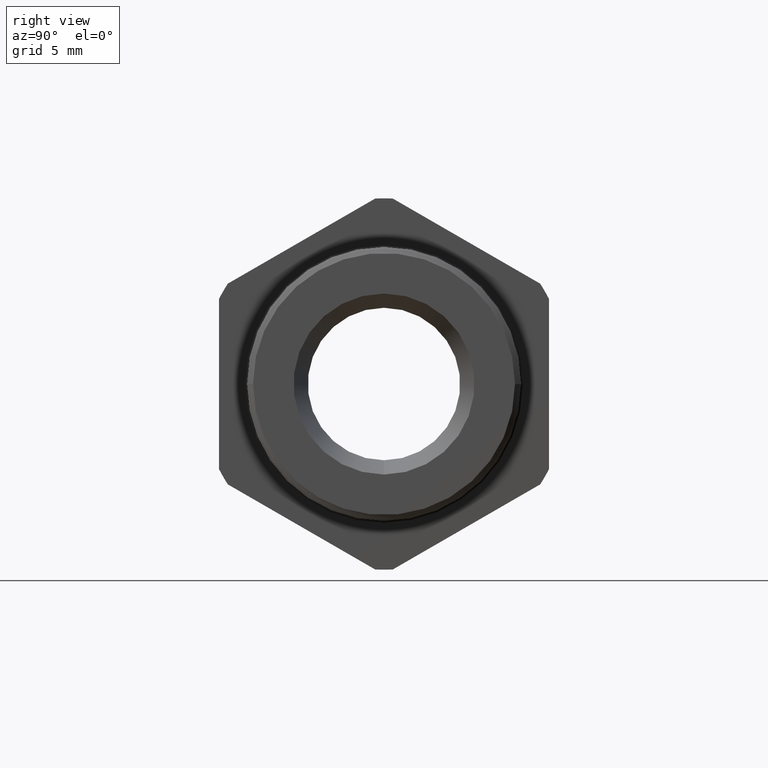
[diagram: clean part render]
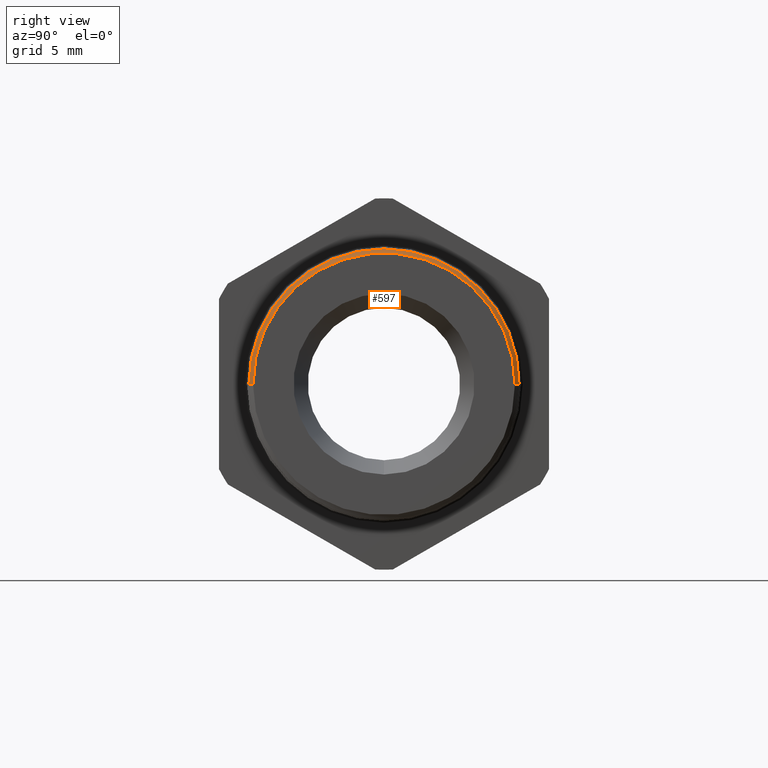
[diagram: same view with one face highlighted and labeled with its STEP entity id]
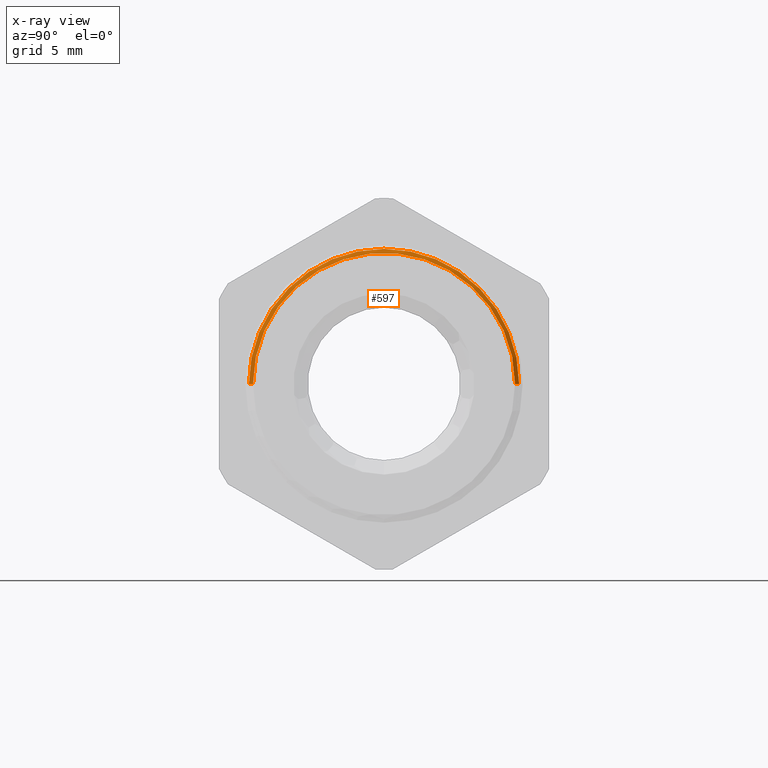
[diagram: x-ray of the same camera — body ghosted, the highlighted face saturated]
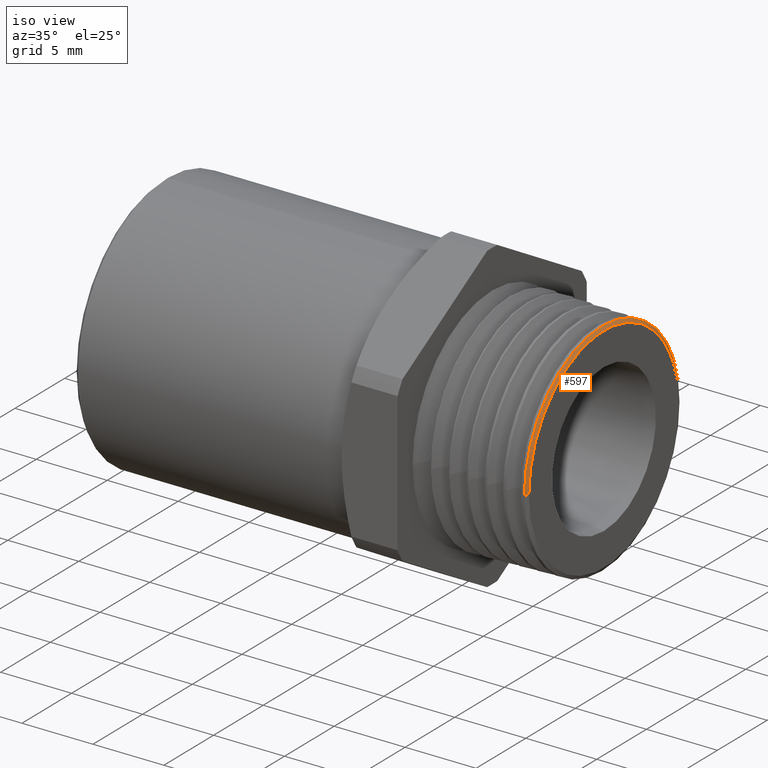
[diagram: same view with one face highlighted and labeled with its STEP entity id]
A machine part, right view. The second image highlights one B-rep face of the part: STEP entity #597.
The next image is the same camera in x-ray: the body ghosted, the highlighted face saturated — about 0% of this face is hidden behind the body in this view.
A second angle (iso view) of the same face is appended — the face is thin or edge-on in the first view.
In plain terms, the highlighted conical surface has half-angle 60 deg.
Its self-contained STEP definition (entity closure, byte-faithful):
#597 = ADVANCED_FACE ( 'NONE', ( #1814 ), #1812, .T. ) ;
#598 = EDGE_LOOP ( 'NONE', ( #599, #604, #607, #610, #613 ) ) ;
#599 = ORIENTED_EDGE ( 'NONE', *, *, #600, .F. ) ;
#600 = EDGE_CURVE ( 'NONE', #602, #603, #1807, .T. ) ;
#602 = VERTEX_POINT ( 'NONE', #1798 ) ;
#603 = VERTEX_POINT ( 'NONE', #1797 ) ;
#604 = ORIENTED_EDGE ( 'NONE', *, *, #605, .T. ) ;
#605 = EDGE_CURVE ( 'NONE', #602, #606, #1796, .T. ) ;
#606 = VERTEX_POINT ( 'NONE', #1854 ) ;
#607 = ORIENTED_EDGE ( 'NONE', *, *, #608, .F. ) ;
#608 = EDGE_CURVE ( 'NONE', #609, #606, #1853, .T. ) ;
#609 = VERTEX_POINT ( 'NONE', #1848 ) ;
#610 = ORIENTED_EDGE ( 'NONE', *, *, #611, .F. ) ;
#611 = EDGE_CURVE ( 'NONE', #612, #609, #1847, .T. ) ;
#612 = VERTEX_POINT ( 'NONE', #1842 ) ;
#613 = ORIENTED_EDGE ( 'NONE', *, *, #614, .F. ) ;
#614 = EDGE_CURVE ( 'NONE', #603, #612, #1841, .T. ) ;
#1793 = DIRECTION ( 'NONE',  ( -0.5000000000000008900, 0.8660254037844380400, 1.060575238724906300E-016 ) ) ;
#1794 = VECTOR ( 'NONE', #1793, 39.37007874015748100 ) ;
#1795 = CARTESIAN_POINT ( 'NONE',  ( -0.009999999999999948200, 0.3150000000000000600, 3.857637417314163900E-017 ) ) ;
#1796 = LINE ( 'NONE', #1795, #1794 ) ;
#1797 = CARTESIAN_POINT ( 'NONE',  ( 8.537024980200822600E-017, -0.2976794919243113700, 3.791200677927629700E-033 ) ) ;
#1798 = CARTESIAN_POINT ( 'NONE',  ( 8.537024980200822600E-017, 0.2976794919243112000, 3.702738733310992100E-017 ) ) ;
#1804 = DIRECTION ( 'NONE',  ( 0.0000000000000000000, 0.0000000000000000000, 1.000000000000000000 ) ) ;
#1805 = DIRECTION ( 'NONE',  ( 1.000000000000000000, 0.0000000000000000000, 0.0000000000000000000 ) ) ;
#1806 = AXIS2_PLACEMENT_3D ( 'NONE', #1813, #1805, #1804 ) ;
#1807 = CIRCLE ( 'NONE', #1806, 0.2976794919243112600 ) ;
#1808 = DIRECTION ( 'NONE',  ( -4.065249990571819000E-017, -1.000000000000000000, 0.0000000000000000000 ) ) ;
#1809 = DIRECTION ( 'NONE',  ( -1.000000000000000000, 3.789761643835506200E-017, 0.0000000000000000000 ) ) ;
#1810 = CARTESIAN_POINT ( 'NONE',  ( -0.009999999999999962000, -5.738476108220664800E-017, 0.0000000000000000000 ) ) ;
#1811 = AXIS2_PLACEMENT_3D ( 'NONE', #1810, #1809, #1808 ) ;
#1812 = CONICAL_SURFACE ( 'NONE', #1811, 0.3150000000000001100, 1.047197551196596700 ) ;
#1813 = CARTESIAN_POINT ( 'NONE',  ( 8.537024980200822600E-017, -5.738476108220664800E-017, 1.916088344691711400E-017 ) ) ;
#1814 = FACE_OUTER_BOUND ( 'NONE', #598, .T. ) ;
#1838 = DIRECTION ( 'NONE',  ( -0.5000000000000008900, -0.8660254037844380400, 0.0000000000000000000 ) ) ;
#1839 = VECTOR ( 'NONE', #1838, 39.37007874015748100 ) ;
#1840 = CARTESIAN_POINT ( 'NONE',  ( -0.009999999999999974200, -0.3150000000000001700, 0.0000000000000000000 ) ) ;
#1841 = LINE ( 'NONE', #1840, #1839 ) ;
#1842 = CARTESIAN_POINT ( 'NONE',  ( -0.005394842501753953000, -0.3070236332361813100, 0.0000000000000000000 ) ) ;
#1843 = DIRECTION ( 'NONE',  ( 0.0000000000000000000, 0.0000000000000000000, 1.000000000000000000 ) ) ;
#1844 = DIRECTION ( 'NONE',  ( -1.000000000000000000, 0.0000000000000000000, 0.0000000000000000000 ) ) ;
#1845 = CARTESIAN_POINT ( 'NONE',  ( -0.005394842501753953000, -5.755928557471339400E-017, 0.0000000000000000000 ) ) ;
#1846 = AXIS2_PLACEMENT_3D ( 'NONE', #1845, #1844, #1843 ) ;
#1847 = CIRCLE ( 'NONE', #1846, 0.3070236332361812600 ) ;
#1848 = CARTESIAN_POINT ( 'NONE',  ( -0.005394842501753953000, -5.755928557471339400E-017, 0.3070236332361812600 ) ) ;
#1849 = DIRECTION ( 'NONE',  ( 0.0000000000000000000, 0.0000000000000000000, 1.000000000000000000 ) ) ;
#1850 = DIRECTION ( 'NONE',  ( -1.000000000000000000, 0.0000000000000000000, 0.0000000000000000000 ) ) ;
#1851 = CARTESIAN_POINT ( 'NONE',  ( -0.005394842501753953000, -5.755928557471339400E-017, 0.0000000000000000000 ) ) ;
#1852 = AXIS2_PLACEMENT_3D ( 'NONE', #1851, #1850, #1849 ) ;
#1853 = CIRCLE ( 'NONE', #1852, 0.3070236332361812600 ) ;
#1854 = CARTESIAN_POINT ( 'NONE',  ( -0.005394842501753953000, 0.3070236332361812600, 3.759955097052803200E-017 ) ) ;